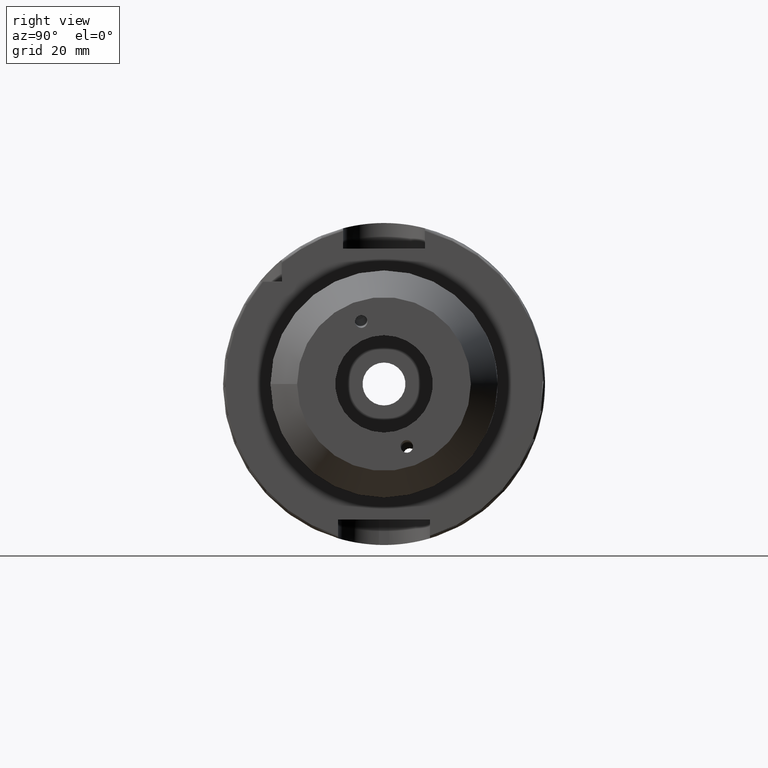
[diagram: clean part render]
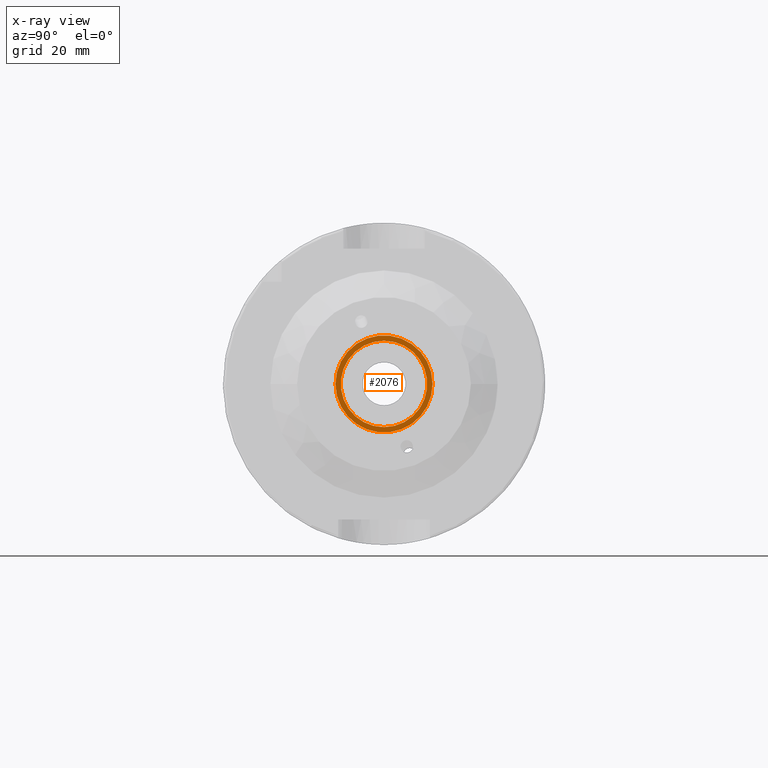
[diagram: x-ray — body ghosted, one internal face saturated and labeled with its STEP entity id]
A machine part, right view, then the same camera in x-ray: the body is ghosted and one INTERNAL B-rep face — a face not visible from any outside direction — is saturated and labeled: STEP entity #2076.
In plain terms, the highlighted planar face has unit normal (-1, 0, 0).
Its self-contained STEP definition (entity closure, byte-faithful):
#64=FACE_BOUND('',#454,.T.);
#106=PLANE('',#2328);
#323=FACE_OUTER_BOUND('',#453,.T.);
#453=EDGE_LOOP('',(#1900));
#454=EDGE_LOOP('',(#1901));
#785=CIRCLE('',#2319,8.458734);
#790=CIRCLE('',#2327,9.5);
#994=VERTEX_POINT('',#4435);
#998=VERTEX_POINT('',#4448);
#1297=EDGE_CURVE('',#994,#994,#785,.T.);
#1303=EDGE_CURVE('',#998,#998,#790,.T.);
#1900=ORIENTED_EDGE('',*,*,#1303,.F.);
#1901=ORIENTED_EDGE('',*,*,#1297,.T.);
#2076=ADVANCED_FACE('',(#323,#64),#106,.F.);
#2319=AXIS2_PLACEMENT_3D('',#4437,#2876,#2877);
#2327=AXIS2_PLACEMENT_3D('',#4450,#2893,#2894);
#2328=AXIS2_PLACEMENT_3D('',#4451,#2895,#2896);
#2876=DIRECTION('center_axis',(-1.,0.,0.));
#2877=DIRECTION('ref_axis',(0.,0.,1.));
#2893=DIRECTION('center_axis',(-1.,0.,0.));
#2894=DIRECTION('ref_axis',(0.,0.,1.));
#2895=DIRECTION('center_axis',(-1.,0.,0.));
#2896=DIRECTION('ref_axis',(0.,0.,1.));
#4435=CARTESIAN_POINT('',(17.,-1.03589615179389E-15,-8.458734));
#4437=CARTESIAN_POINT('Origin',(17.,0.,0.));
#4448=CARTESIAN_POINT('',(17.,-9.5,1.16341445918999E-15));
#4450=CARTESIAN_POINT('Origin',(17.,0.,0.));
#4451=CARTESIAN_POINT('Origin',(17.,7.5,0.));